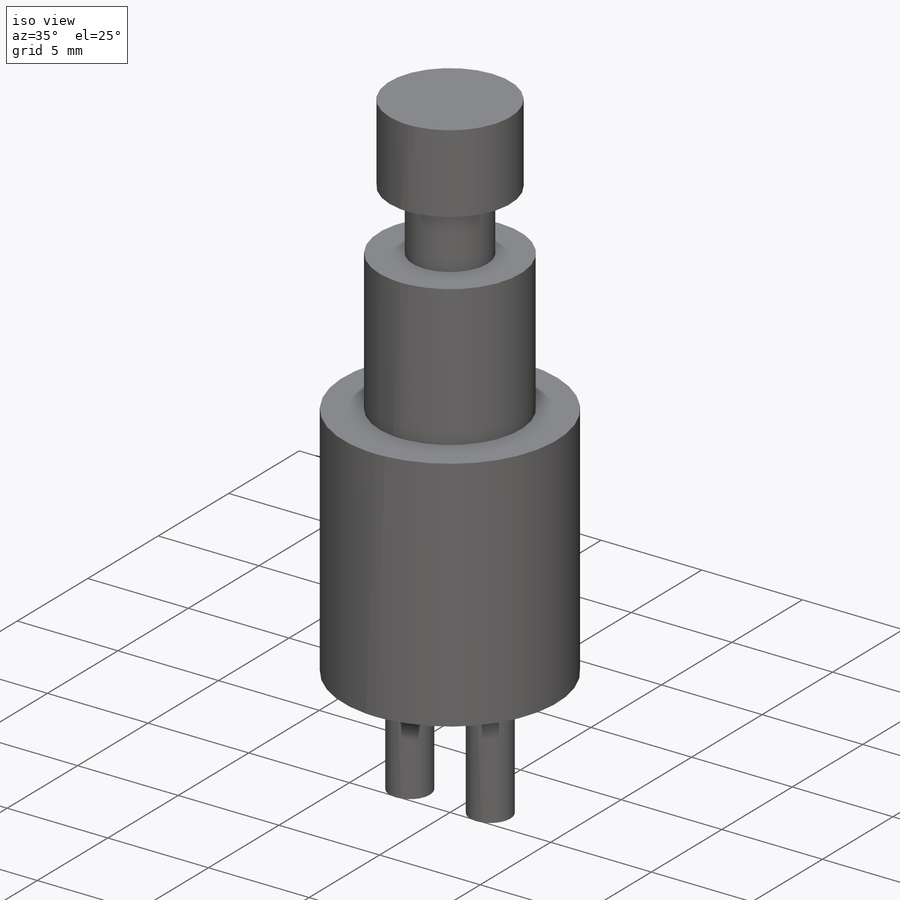
[diagram: iso view]
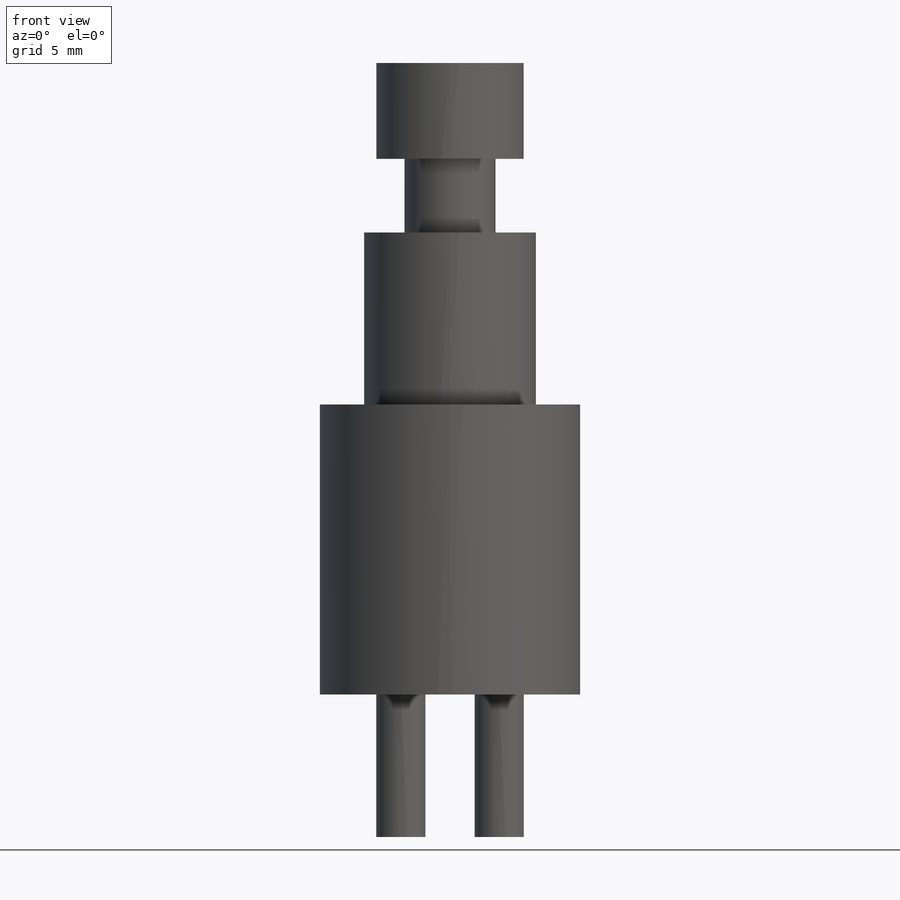
[diagram: front view]
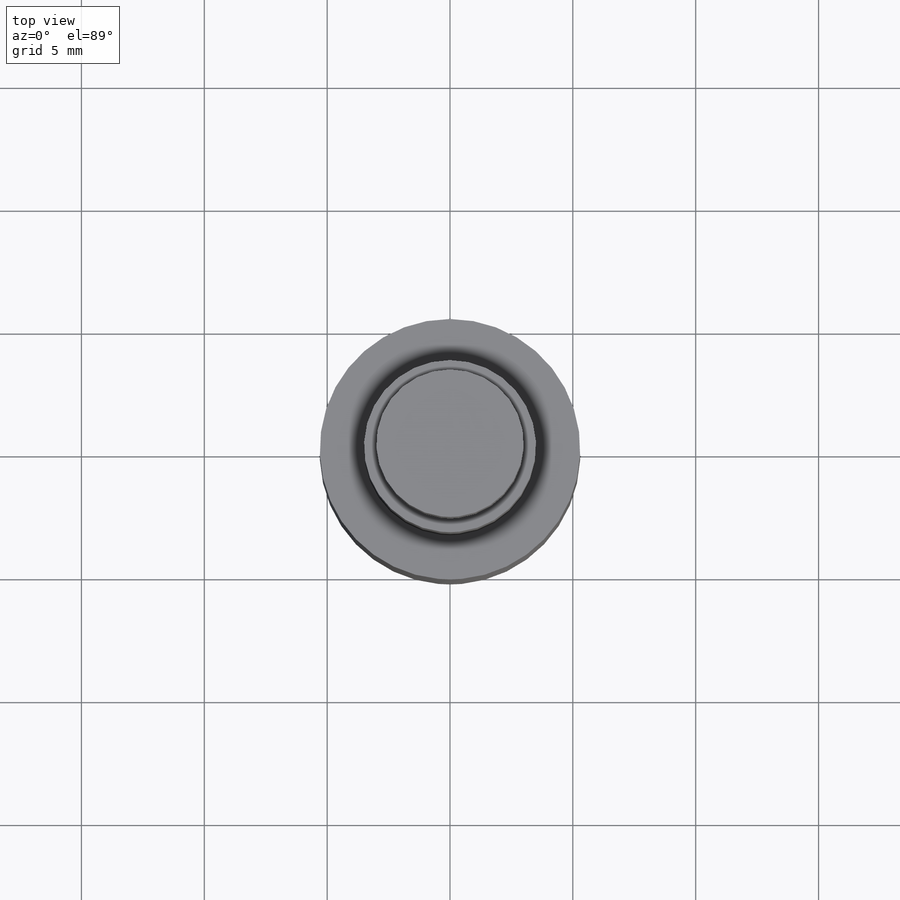
[diagram: top view]
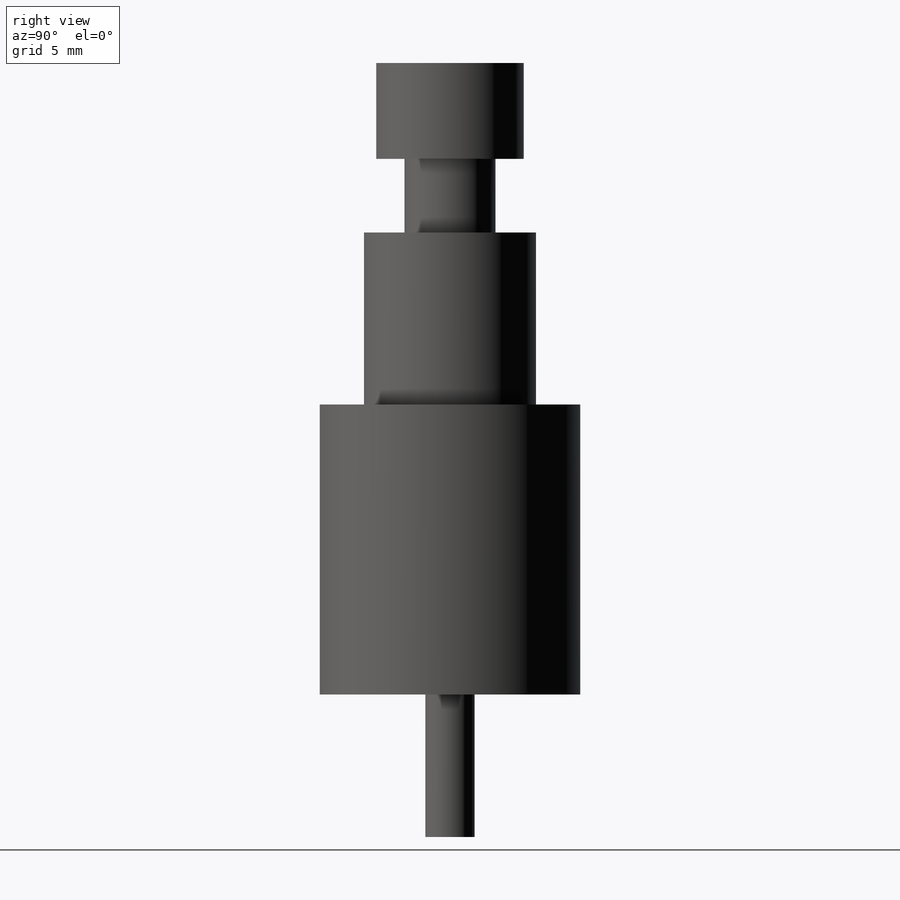
[diagram: right view]
SOLIDWORKS PART (.sldprt)
format: sldprt  version: not decoded by parser v0  size: 147,968 bytes
history: native  units: mm
features: sketch x5, extrude x5, material x1 (+13 scaffold rows collapsed)
feature tree (24):
  scaffold x13  (default folders/planes/origin — collapsed)
  material  "Material <not specified>"
  sketch  "Sketch2"  dims[D1=~25.476159mm]
  extrude  "Boss-Extrude1"  Depth=11.8mm
  sketch  "Sketch3"  dims[D1=~2.575509mm]
  extrude  "Boss-Extrude2"  Depth=7mm
  sketch  "Sketch4"  dims[D1=1.5mm]
  extrude  "Boss-Extrude3"  Depth=3mm
  sketch  "Sketch5"  dims[D1=1.5mm]
  extrude  "Boss-Extrude4"  Depth=3.9mm
  sketch  "Sketch6"  dims[D1=4.0mm D2=2.0mm]
  extrude  "Boss-Extrude5"  Depth=5.8mm
decode coverage: 10 of 10 modeling features carry decoded parameters
note: ~ marks probable driven/reference dimensions
note: suppression state not decoded; provenance and decode notes live in map.json
